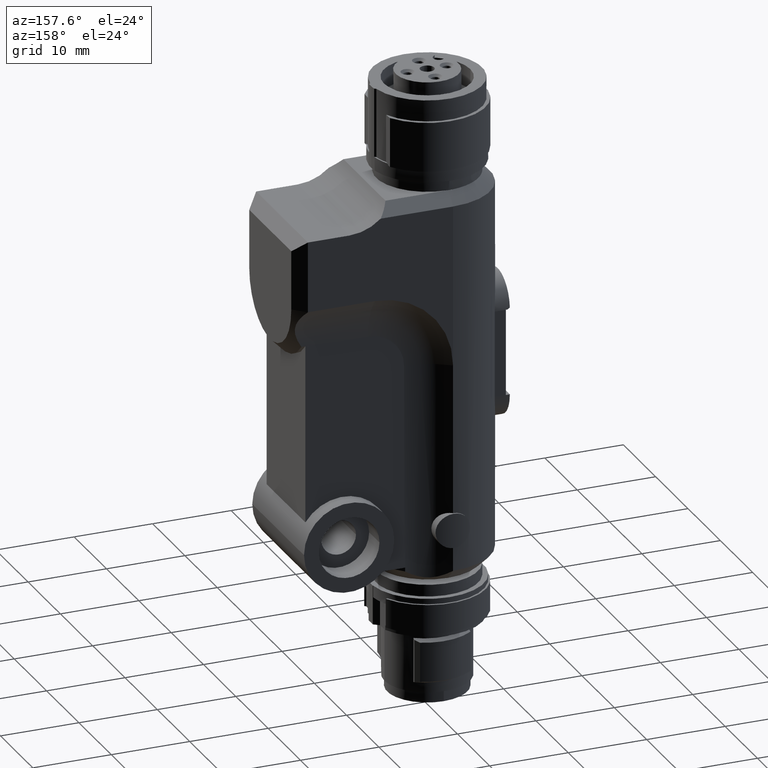
[diagram: clean part render]
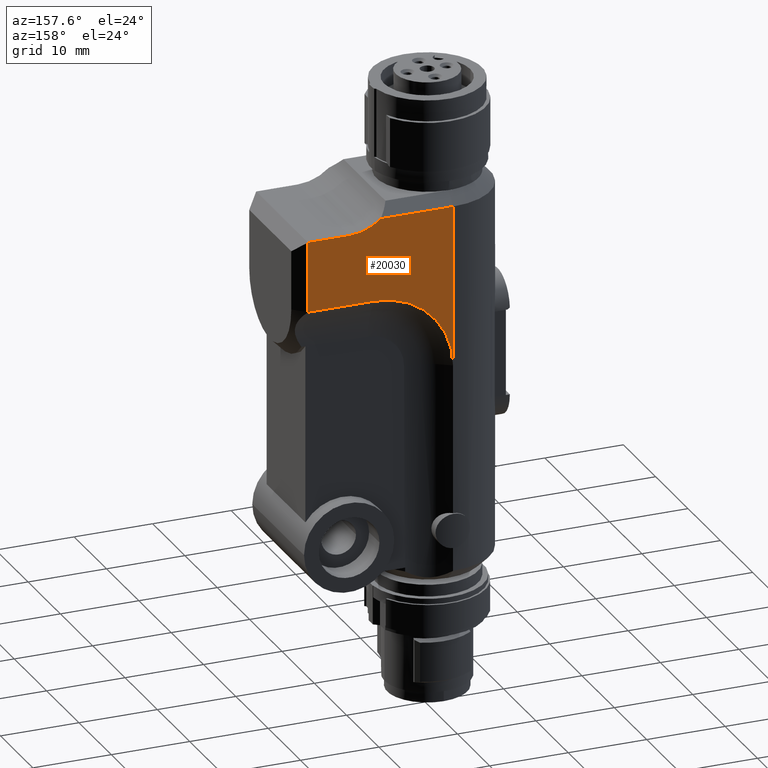
[diagram: same view with one face highlighted and labeled with its STEP entity id]
A machine part, auxiliary view. The second image highlights one B-rep face of the part: STEP entity #20030.
In plain terms, the highlighted planar face has unit normal (0, -1, 0).
Its self-contained STEP definition (entity closure, byte-faithful):
#9360=CARTESIAN_POINT('',(-8.,4.56777472988637E-15,28.0000000000002));
#9370=VERTEX_POINT('',#9360);
#9400=CARTESIAN_POINT('',(-8.,3.5527136788005E-15,0.));
#9410=DIRECTION('',(0.,0.,-1.));
#9420=VECTOR('',#9410,1.);
#9430=LINE('',#9400,#9420);
#9440=CARTESIAN_POINT('',(-7.99999999999999,3.55271367880052E-15,48.5));
#9450=VERTEX_POINT('',#9440);
#9460=EDGE_CURVE('',#9450,#9370,#9430,.T.);
#10950=CARTESIAN_POINT('',(-7.99999999999999,18.5,47.));
#10960=VERTEX_POINT('',#10950);
#18660=CARTESIAN_POINT('',(-7.99999999999999,13.1961524227066,47.));
#18670=VERTEX_POINT('',#18660);
#18700=CARTESIAN_POINT('',(-8.,0.,47.));
#18710=DIRECTION('',(0.,-1.,0.));
#18720=VECTOR('',#18710,1.);
#18730=LINE('',#18700,#18720);
#18740=EDGE_CURVE('',#10960,#18670,#18730,.T.);
#18970=CARTESIAN_POINT('',(-8.,9.22752545610978,48.5));
#18980=VERTEX_POINT('',#18970);
#19010=CARTESIAN_POINT('',(-8.,13.1961524227066,53.));
#19020=DIRECTION('',(-1.,0.,0.));
#19030=DIRECTION('',(0.,1.,0.));
#19040=AXIS2_PLACEMENT_3D('',#19010,#19020,#19030);
#19050=CIRCLE('',#19040,5.99999999999996);
#19060=EDGE_CURVE('',#18670,#18980,#19050,.T.);
#19640=CARTESIAN_POINT('',(-7.99999999999999,7.46028462077985,
13.0533067988253));
#19650=DIRECTION('',(1.,0.,0.));
#19660=DIRECTION('',(0.,-1.,0.));
#19670=AXIS2_PLACEMENT_3D('',#19640,#19650,#19660);
#19680=PLANE('',#19670);
#19690=CARTESIAN_POINT('',(-7.99999999999999,20.,38.));
#19700=DIRECTION('',(0.,1.,0.));
#19710=VECTOR('',#19700,1.);
#19720=LINE('',#19690,#19710);
#19730=CARTESIAN_POINT('',(-7.99999999999999,10.,38.));
#19740=VERTEX_POINT('',#19730);
#19750=CARTESIAN_POINT('',(-7.99999999999999,18.5,38.));
#19760=VERTEX_POINT('',#19750);
#19770=EDGE_CURVE('',#19740,#19760,#19720,.T.);
#19780=ORIENTED_EDGE('',*,*,#19770,.F.);
#19790=CARTESIAN_POINT('',(-8.,18.5,0.));
#19800=DIRECTION('',(0.,0.,-1.));
#19810=VECTOR('',#19800,1.);
#19820=LINE('',#19790,#19810);
#19830=EDGE_CURVE('',#10960,#19760,#19820,.T.);
#19840=ORIENTED_EDGE('',*,*,#19830,.T.);
#19850=ORIENTED_EDGE('',*,*,#18740,.F.);
#19860=ORIENTED_EDGE('',*,*,#19060,.F.);
#19870=CARTESIAN_POINT('',(-8.,0.,48.5));
#19880=DIRECTION('',(0.,-1.,0.));
#19890=VECTOR('',#19880,1.);
#19900=LINE('',#19870,#19890);
#19910=EDGE_CURVE('',#18980,#9450,#19900,.T.);
#19920=ORIENTED_EDGE('',*,*,#19910,.F.);
#19930=ORIENTED_EDGE('',*,*,#9460,.F.);
#19940=CARTESIAN_POINT('',(-7.99999999999999,10.,28.));
#19950=DIRECTION('',(1.,-4.93038065763133E-31,-2.52970265222012E-16));
#19960=DIRECTION('',(-7.62657342238343E-31,-1.,-1.06581410364015E-15));
#19970=AXIS2_PLACEMENT_3D('',#19940,#19950,#19960);
#19980=CIRCLE('',#19970,9.99999999999999);
#19990=EDGE_CURVE('',#19740,#9370,#19980,.T.);
#20000=ORIENTED_EDGE('',*,*,#19990,.T.);
#20010=EDGE_LOOP('',(#20000,#19930,#19920,#19860,#19850,#19840,#19780));
#20020=FACE_OUTER_BOUND('',#20010,.T.);
#20030=ADVANCED_FACE('',(#20020),#19680,.F.);